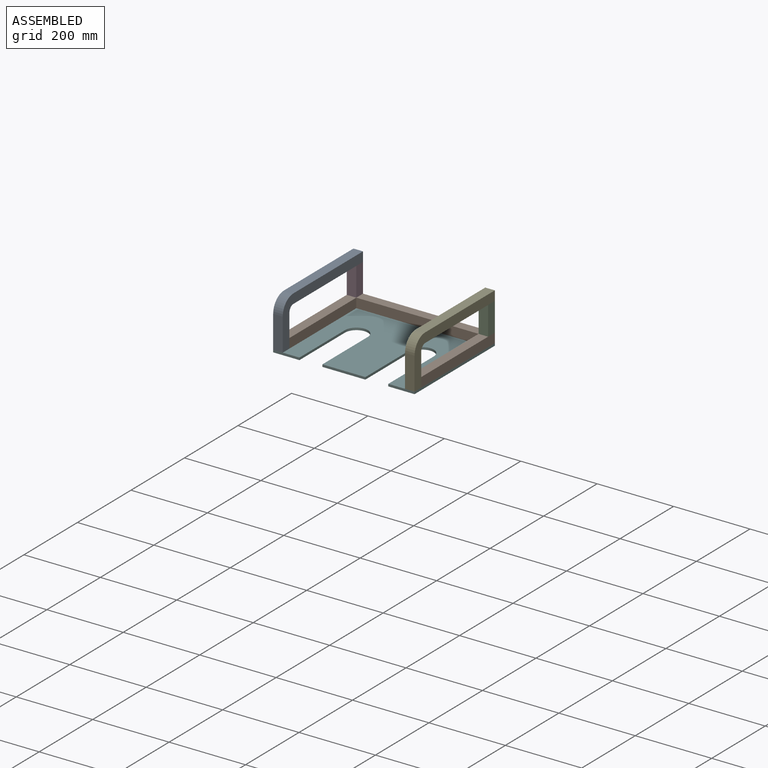
[diagram: assembled view]
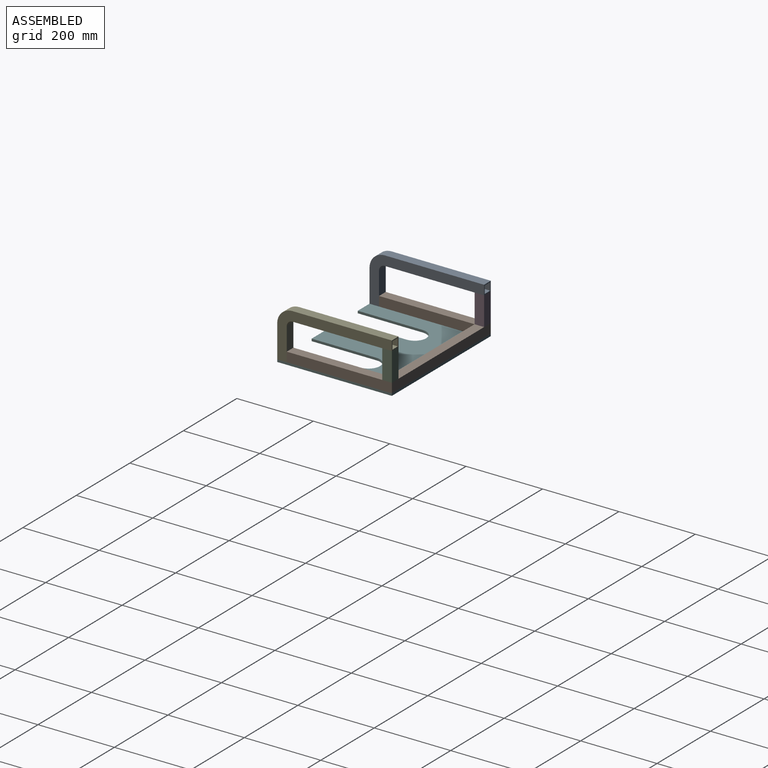
[diagram: assembled view, second angle]
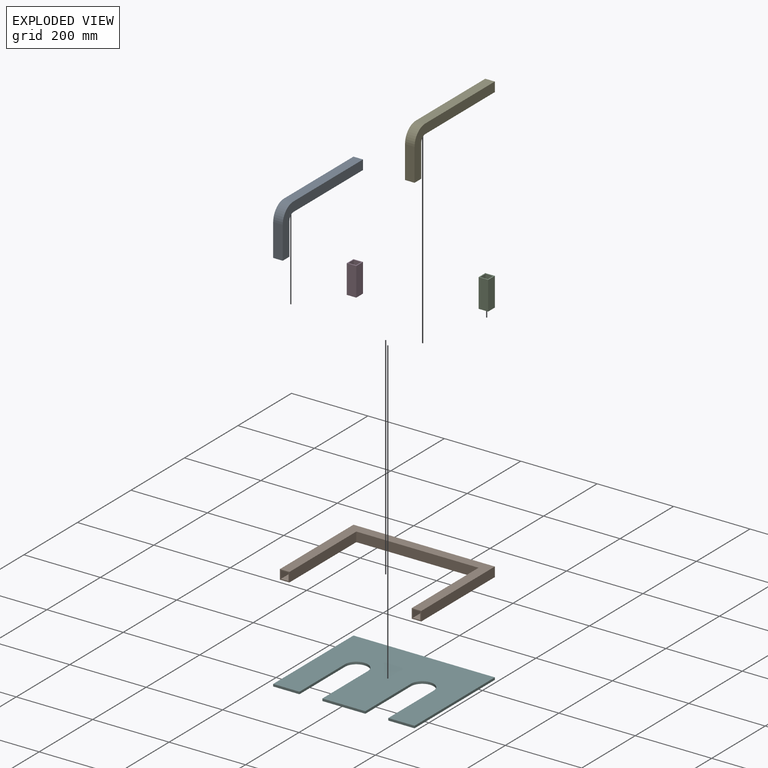
[diagram: exploded view]
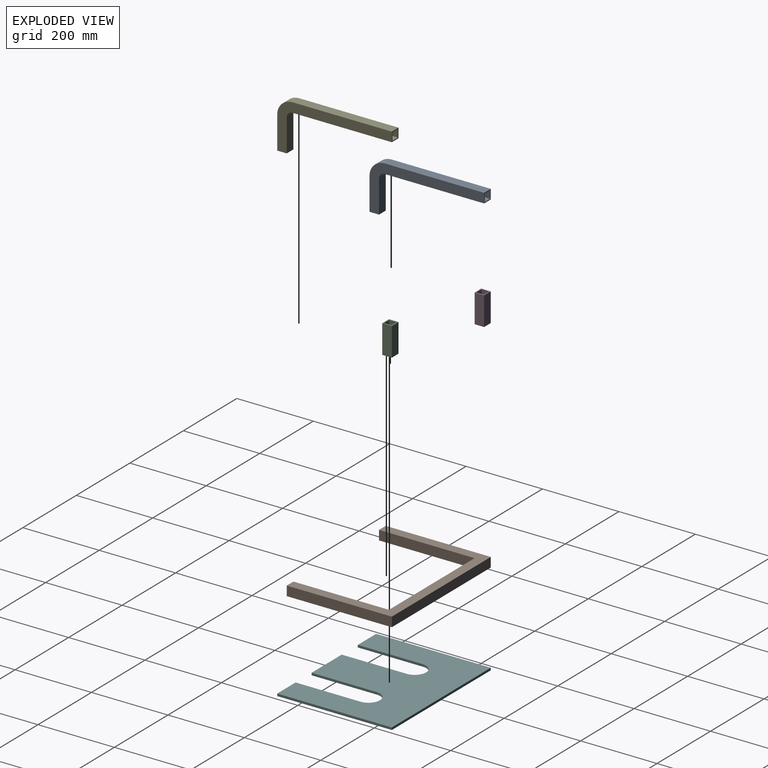
[diagram: exploded view, second angle]
ASSEMBLY  parts=6 mates=5
PART A: 18 faces, bbox 25x300x125 mm
  f0: plane 25x25mm, normal (0,1,0), area 225mm2, adj f4,f5,f8,f9,f12,f13,f16,f17
  f1: plane 25x25mm, normal (0,0,-1), area 225mm2, adj f2,f7,f8,f9,f10,f15,f16,f17
  f2: plane 85x25mm, normal (0,1,0), area 2125mm2, adj f1,f3,f8,f9
  f3: cylinder r=15mm len=25mm, axis (-1,0,0), area 589mm2, adj f2,f4,f8,f9
  f4: plane 260x25mm, normal (0,0,-1), area 6500mm2, adj f0,f3,f8,f9
  f5: plane 260x25mm, normal (0,0,1), area 6500mm2, adj f0,f6,f8,f9
  f6: cylinder r=40mm len=40mm, axis (-1,0,0), area 1570.8mm2, adj f5,f7,f8,f9
  f7: plane 85x25mm, normal (0,-1,0), area 2125mm2, adj f1,f6,f8,f9
  f8: plane 300x125mm, normal (1,0,0), area 9704.9mm2, adj f0,f1,f2,f3,f4,f5,f6,f7
  f9: plane 300x125mm, normal (-1,0,0), area 9704.9mm2, adj f0,f1,f2,f3,f4,f5,f6,f7
  f10: plane 85x20mm, normal (0,-1,0), area 1700mm2, adj f1,f11,f16,f17
  f11: cylinder r=17.5mm len=20mm, axis (-1,0,0), area 549.8mm2, adj f10,f12,f16,f17
  f12: plane 260x20mm, normal (0,0,1), area 5200mm2, adj f0,f11,f16,f17
  f13: plane 260x20mm, normal (0,0,-1), area 5200mm2, adj f0,f14,f16,f17
  f14: cylinder r=37.5mm len=37.5mm, axis (-1,0,0), area 1178.1mm2, adj f13,f15,f16,f17
  f15: plane 85x20mm, normal (0,1,0), area 1700mm2, adj f1,f14,f16,f17
  f16: plane 297.5x122.5mm, normal (-1,0,0), area 7763.9mm2, adj f0,f1,f10,f11,f12,f13,f14,f15
  f17: plane 297.5x122.5mm, normal (1,0,0), area 7763.9mm2, adj f0,f1,f10,f11,f12,f13,f14,f15
PART B: 18 faces, bbox 370x275x25 mm
  f0: plane 25x25mm, normal (0,-1,0), area 225mm2, adj f4,f5,f8,f9,f12,f13,f16,f17
  f1: plane 25x25mm, normal (0,-1,0), area 225mm2, adj f2,f7,f8,f9,f10,f15,f16,f17
  f2: plane 250x25mm, normal (1,0,0), area 6250mm2, adj f1,f3,f8,f9
  f3: plane 320x25mm, normal (0,-1,0), area 8000mm2, adj f2,f4,f8,f9
  f4: plane 250x25mm, normal (-1,0,0), area 6250mm2, adj f0,f3,f8,f9
  f5: plane 275x25mm, normal (1,0,0), area 6875mm2, adj f0,f6,f8,f9
  f6: plane 370x25mm, normal (0,1,0), area 9250mm2, adj f5,f7,f8,f9
  f7: plane 275x25mm, normal (-1,0,0), area 6875mm2, adj f1,f6,f8,f9
  f8: plane 370x275mm, normal (0,0,1), area 21750mm2, adj f0,f1,f2,f3,f4,f5,f6,f7
  f9: plane 370x275mm, normal (0,0,-1), area 21750mm2, adj f0,f1,f2,f3,f4,f5,f6,f7
  f10: plane 252.5x20mm, normal (-1,0,0), area 5050mm2, adj f1,f11,f16,f17
  f11: plane 325x20mm, normal (0,1,0), area 6500mm2, adj f10,f12,f16,f17
  f12: plane 252.5x20mm, normal (1,0,0), area 5050mm2, adj f0,f11,f16,f17
  f13: plane 272.5x20mm, normal (-1,0,0), area 5450mm2, adj f0,f14,f16,f17
  f14: plane 365x20mm, normal (0,-1,0), area 7300mm2, adj f13,f15,f16,f17
  f15: plane 272.5x20mm, normal (1,0,0), area 5450mm2, adj f1,f14,f16,f17
  f16: plane 365x272.5mm, normal (0,0,-1), area 17400mm2, adj f0,f1,f10,f11,f12,f13,f14,f15
  f17: plane 365x272.5mm, normal (0,0,1), area 17400mm2, adj f0,f1,f10,f11,f12,f13,f14,f15
PART C: 10 faces, bbox 25x25x75 mm
  f0: plane 25x25mm, normal (0,0,1), area 225mm2, adj f2,f3,f4,f5,f6,f7,f8,f9
  f1: plane 25x25mm, normal (0,0,-1), area 225mm2, adj f2,f3,f4,f5,f6,f7,f8,f9
  f2: plane 75x25mm, normal (0,-1,0), area 1875mm2, adj f0,f1,f4,f5
  f3: plane 75x25mm, normal (0,1,0), area 1875mm2, adj f0,f1,f4,f5
  f4: plane 75x25mm, normal (-1,0,0), area 1875mm2, adj f0,f1,f2,f3
  f5: plane 75x25mm, normal (1,0,0), area 1875mm2, adj f0,f1,f2,f3
  f6: plane 75x20mm, normal (0,1,0), area 1500mm2, adj f0,f1,f8,f9
  f7: plane 75x20mm, normal (0,-1,0), area 1500mm2, adj f0,f1,f8,f9
  f8: plane 75x20mm, normal (1,0,0), area 1500mm2, adj f0,f1,f6,f7
  f9: plane 75x20mm, normal (-1,0,0), area 1500mm2, adj f0,f1,f6,f7
PART D: 10 faces, bbox 25x25x75 mm
  f0: plane 25x25mm, normal (0,0,1), area 225mm2, adj f2,f3,f4,f5,f6,f7,f8,f9
  f1: plane 25x25mm, normal (0,0,-1), area 225mm2, adj f2,f3,f4,f5,f6,f7,f8,f9
  f2: plane 75x25mm, normal (0,-1,0), area 1875mm2, adj f0,f1,f4,f5
  f3: plane 75x25mm, normal (0,1,0), area 1875mm2, adj f0,f1,f4,f5
  f4: plane 75x25mm, normal (1,0,0), area 1875mm2, adj f0,f1,f2,f3
  f5: plane 75x25mm, normal (-1,0,0), area 1875mm2, adj f0,f1,f2,f3
  f6: plane 75x20mm, normal (0,1,0), area 1500mm2, adj f0,f1,f8,f9
  f7: plane 75x20mm, normal (0,-1,0), area 1500mm2, adj f0,f1,f8,f9
  f8: plane 75x20mm, normal (-1,0,0), area 1500mm2, adj f0,f1,f6,f7
  f9: plane 75x20mm, normal (1,0,0), area 1500mm2, adj f0,f1,f6,f7
PART E: 18 faces, bbox 25x300x125 mm
  f0: plane 25x25mm, normal (0,1,0), area 225mm2, adj f4,f5,f8,f9,f12,f13,f16,f17
  f1: plane 25x25mm, normal (0,0,-1), area 225mm2, adj f2,f7,f8,f9,f10,f15,f16,f17
  f2: plane 85x25mm, normal (0,1,0), area 2125mm2, adj f1,f3,f8,f9
  f3: cylinder r=15mm len=25mm, axis (1,0,0), area 589mm2, adj f2,f4,f8,f9
  f4: plane 260x25mm, normal (0,0,-1), area 6500mm2, adj f0,f3,f8,f9
  f5: plane 260x25mm, normal (0,0,1), area 6500mm2, adj f0,f6,f8,f9
  f6: cylinder r=40mm len=40mm, axis (1,0,0), area 1570.8mm2, adj f5,f7,f8,f9
  f7: plane 85x25mm, normal (0,-1,0), area 2125mm2, adj f1,f6,f8,f9
  f8: plane 300x125mm, normal (-1,0,0), area 9704.9mm2, adj f0,f1,f2,f3,f4,f5,f6,f7
  f9: plane 300x125mm, normal (1,0,0), area 9704.9mm2, adj f0,f1,f2,f3,f4,f5,f6,f7
  f10: plane 85x20mm, normal (0,-1,0), area 1700mm2, adj f1,f11,f16,f17
  f11: cylinder r=17.5mm len=20mm, axis (1,0,0), area 549.8mm2, adj f10,f12,f16,f17
  f12: plane 260x20mm, normal (0,0,1), area 5200mm2, adj f0,f11,f16,f17
  f13: plane 260x20mm, normal (0,0,-1), area 5200mm2, adj f0,f14,f16,f17
  f14: cylinder r=37.5mm len=37.5mm, axis (1,0,0), area 1178.1mm2, adj f13,f15,f16,f17
  f15: plane 85x20mm, normal (0,1,0), area 1700mm2, adj f1,f14,f16,f17
  f16: plane 297.5x122.5mm, normal (1,0,0), area 7763.9mm2, adj f0,f1,f10,f11,f12,f13,f14,f15
  f17: plane 297.5x122.5mm, normal (-1,0,0), area 7763.9mm2, adj f0,f1,f10,f11,f12,f13,f14,f15
PART F: 14 faces, bbox 370x300x6 mm
  f0: plane 68.75x6mm, normal (0,-1,0), area 412.5mm2, adj f1,f11,f12,f13
  f1: plane 170x6mm, normal (1,0,0), area 1020mm2, adj f0,f2,f12,f13
  f2: cylinder r=30mm len=60mm, axis (0,0,1), area 565.5mm2, adj f1,f3,f12,f13
  f3: plane 170x6mm, normal (-1,0,0), area 1020mm2, adj f2,f4,f12,f13
  f4: plane 112.5x6mm, normal (0,-1,0), area 675mm2, adj f3,f5,f12,f13
  f5: plane 170x6mm, normal (1,0,0), area 1020mm2, adj f4,f6,f12,f13
  f6: cylinder r=30mm len=60mm, axis (0,0,1), area 565.5mm2, adj f5,f7,f12,f13
  f7: plane 170x6mm, normal (-1,0,0), area 1020mm2, adj f6,f8,f12,f13
  f8: plane 68.75x6mm, normal (0,-1,0), area 412.5mm2, adj f7,f9,f12,f13
  f9: plane 300x6mm, normal (1,0,0), area 1800mm2, adj f8,f10,f12,f13
  f10: plane 370x6mm, normal (0,1,0), area 2220mm2, adj f9,f11,f12,f13
  f11: plane 300x6mm, normal (-1,0,0), area 1800mm2, adj f0,f10,f12,f13
  f12: plane 370x300mm, normal (0,0,-1), area 87772.6mm2, adj f0,f1,f2,f3,f4,f5,f6,f7
  f13: plane 370x300mm, normal (0,0,1), area 87772.6mm2, adj f0,f1,f2,f3,f4,f5,f6,f7
PLACE A t=(15.14,96.15,-31)mm
PLACE B t=(15.14,96.15,-31)mm
PLACE C t=(15.14,96.15,-31)mm
PLACE D t=(15.14,96.15,-31)mm
PLACE E t=(15.14,96.15,-31)mm
PLACE F t=(15.14,96.15,-31)mm
MATE fastened A.f1 <-> F.f13  axis (0,0,-1) through (-169.86,-53.85,-31)mm
MATE fastened D.f1 <-> B.f8  axis (0,0,-1) through (-169.86,246.15,-6)mm
MATE fastened E.f1 <-> F.f13  axis (0,0,-1) through (200.14,-53.85,-31)mm
MATE fastened B.f9 <-> F.f13  axis (0,0,-1) through (-169.86,246.15,-31)mm
MATE fastened C.f1 <-> B.f8  axis (0,0,-1) through (200.14,246.15,-6)mm
